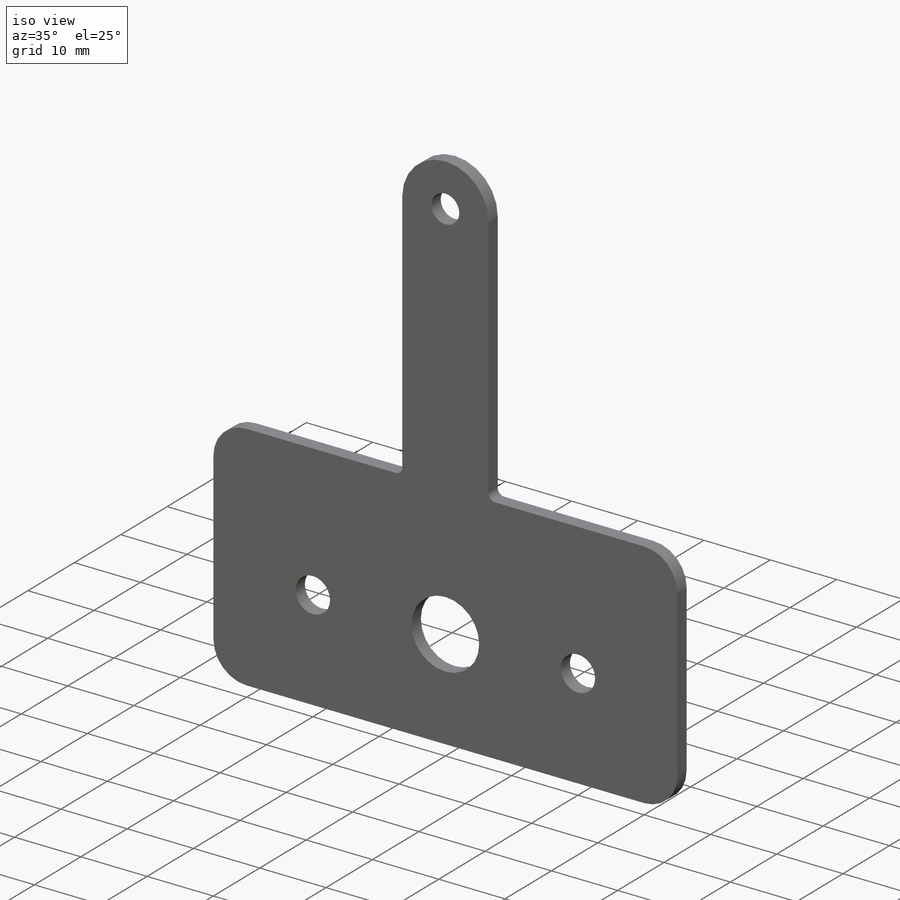
[diagram: iso view]
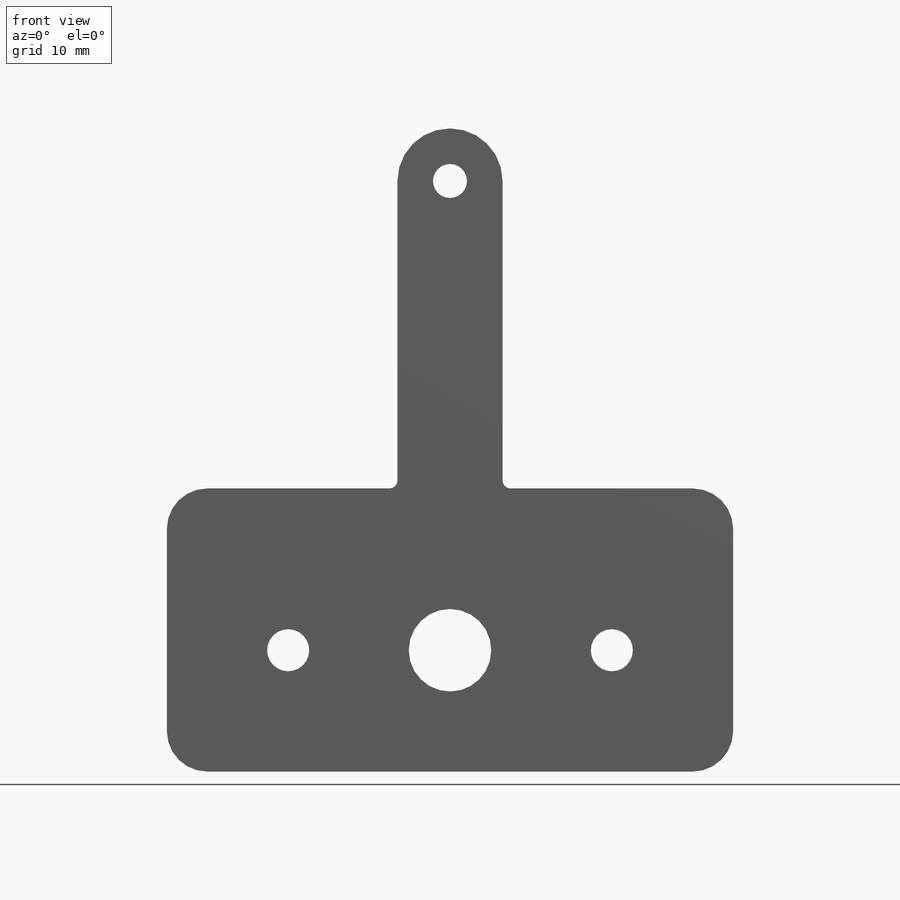
[diagram: front view]
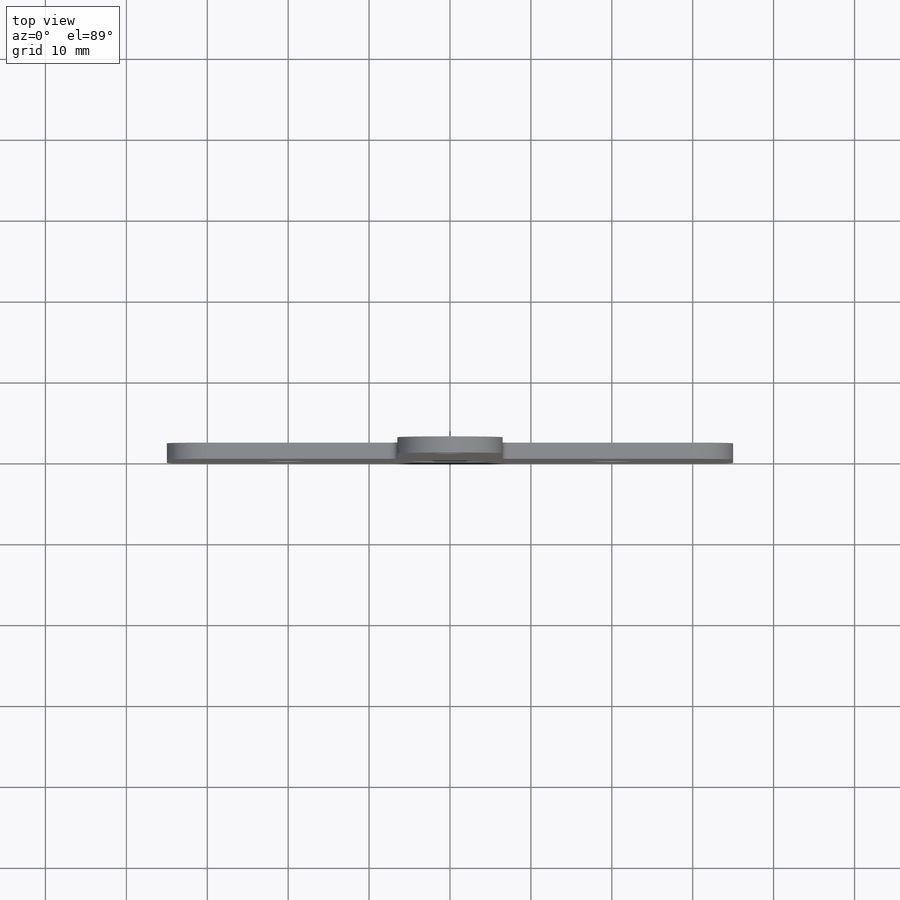
[diagram: top view]
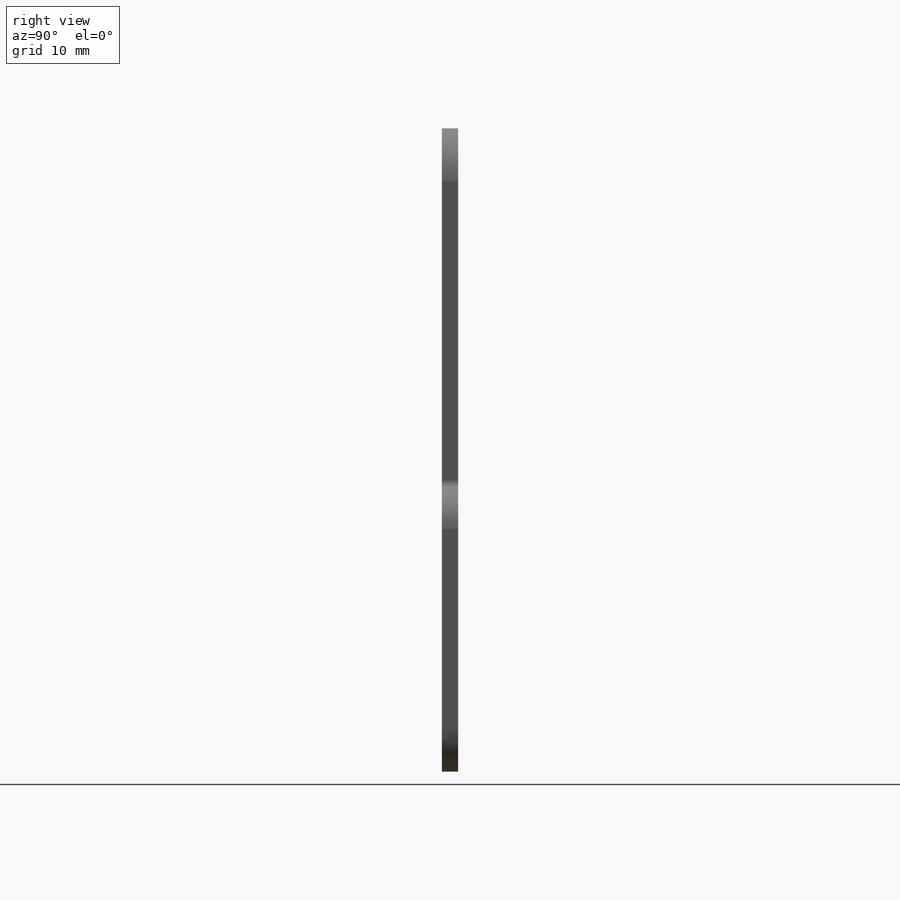
[diagram: right view]
SOLIDWORKS PART (.sldprt)
format: sldprt  version: not decoded by parser v0  size: 254,976 bytes
history: native  units: mm
features: sketch x6, sheet_metal_op x3, fillet x2, material x1, hole x1 + 1 further entry (+11 scaffold rows collapsed; 1 parser-record rows omitted)
feature tree (26):
  scaffold x11  (default folders/planes/origin — collapsed)
  material  "AISI 316 Stainless Steel Sheet (SS)"
  sketch  "Sketch1"  dims[c1.D4=5.2mm c1.D5=10.2mm c1.D13=1.0mm c1.D14=5.0mm c1.D11=5.2mm c1.D1=30.0mm c1.D2=~85.675347mm c1.D3=44.0mm c1.D6=20.0mm c1.D7=20.0mm c1.D8=15.0mm c1.D9=15.0mm c1.D10=1.5mm c2.D11=5.0mm c2.D10=5.0mm c2.D3=43.0mm c2.D4=13.0mm c2.D12=3.0mm]
  sheet_metal_op  "Sheet-Metal1"
  sheet_metal_op  "Base-Flange1"
  sketch  "Sketch7"
  sketch  "Sketch8"  dims[D1=0.0mm D4=90.0deg D5=1.0 D8=1.0mm D9=1.0mm]
  sheet_metal_op  "EdgeBend2"
  fillet  "Fillet1"  Radius=3mm
  hole  "M5x0.8 Tapped Hole1"  Diameter=4.2mm Depth=2mm
  sketch  "Sketch10"
  sketch  "Sketch9"  dims[hole-wizard template sketch: 60 standard entries collapsed; hole parameters kept: c18.Thru Tap Drill Depth=2.0mm]
  "Flat-Pattern1"
  sketch  "Bend-Lines1"
  parser-record x1  (decoder bookkeeping rows leaked as tree rows — omitted from the tree; the rows remain in map.json)
  fillet  "Flatten-<EdgeBend2>1"  [1 undecoded]
decode coverage: 5 of 12 modeling features carry decoded parameters; 1 rows unclassified (native names shown)
note: ~ marks probable driven/reference dimensions
note: 1 parameter value undecoded
note: suppression state not decoded; provenance and decode notes live in map.json
